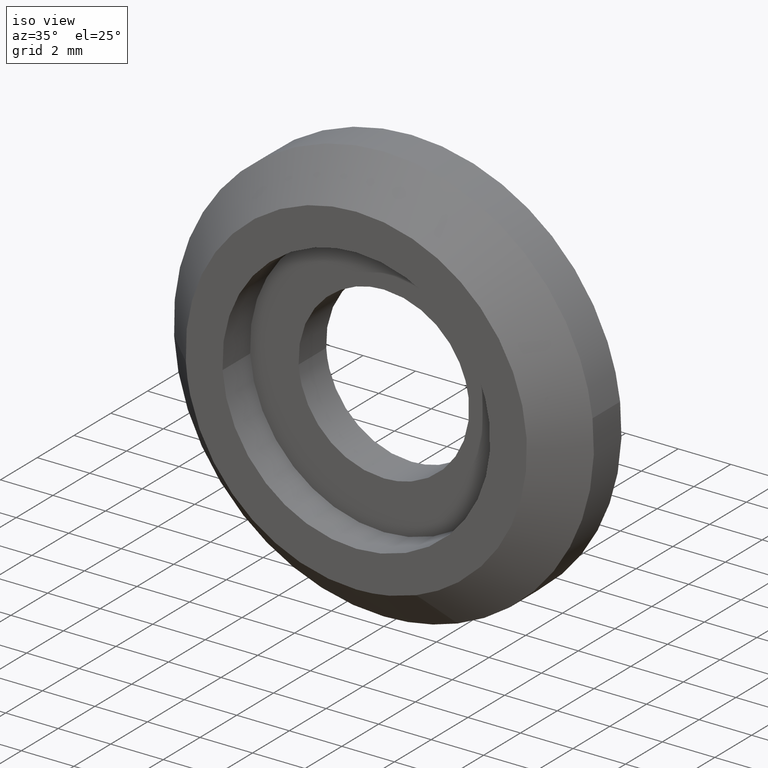
[diagram: clean part render]
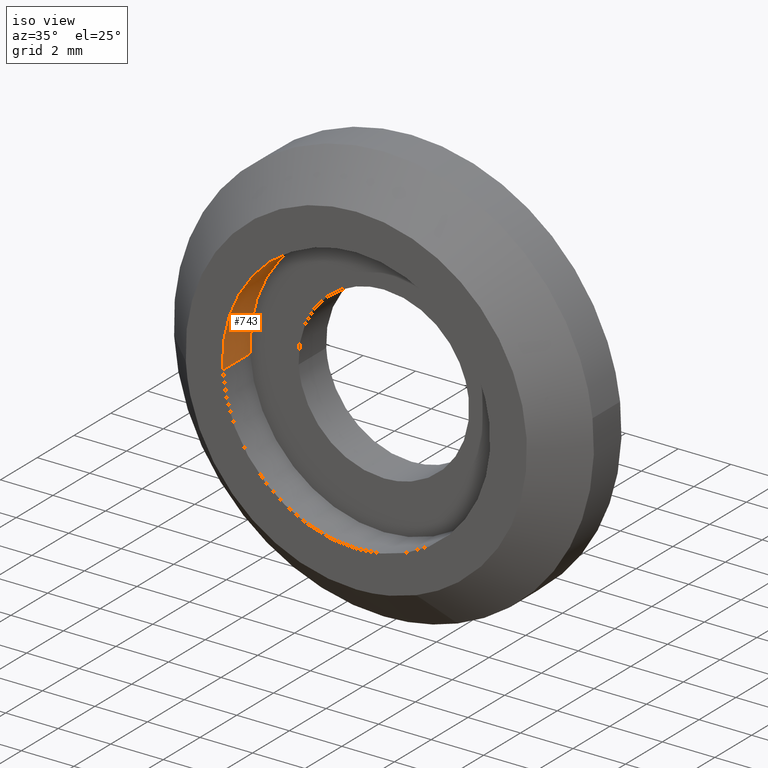
[diagram: same view with one face highlighted and labeled with its STEP entity id]
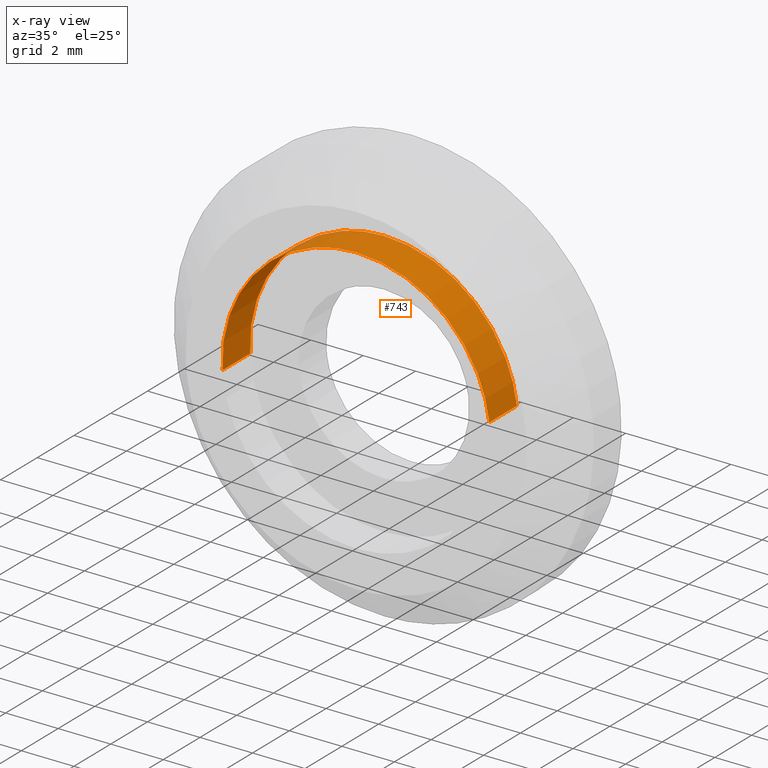
[diagram: x-ray of the same camera — body ghosted, the highlighted face saturated]
A machine part, iso view. The second image highlights one B-rep face of the part: STEP entity #743.
The next image is the same camera in x-ray: the body ghosted, the highlighted face saturated — about 0% of this face is hidden behind the body in this view.
In plain terms, the highlighted face is a freeform B-spline surface patch.
Its self-contained STEP definition (entity closure, byte-faithful):
#580=CARTESIAN_POINT('',(5.064348875071119,-2.917867E-014,0.601972151814212));
#581=VERTEX_POINT('',#580);
#599=CARTESIAN_POINT('',(-5.090487553960555,9.225259E-015,-0.311346210786117));
#600=VERTEX_POINT('',#599);
#614=CARTESIAN_POINT('',(-5.090487552947563,-1.500000000000000,-0.311346227348550));
#615=VERTEX_POINT('',#614);
#616=CARTESIAN_POINT('',(-5.090487552947563,-1.500000000000000,-0.311346227348550));
#617=CARTESIAN_POINT('',(-5.090487553960555,9.225259E-015,-0.311346210786117));
#618=QUASI_UNIFORM_CURVE('',1,(#616,#617),.UNSPECIFIED.,.F.,.U.);
#619=EDGE_CURVE('',#615,#600,#618,.T.);
#636=CARTESIAN_POINT('',(5.064348871488670,-1.500000000000000,0.601972181953224));
#637=VERTEX_POINT('',#636);
#653=CARTESIAN_POINT('',(5.064348871488670,-1.500000000000000,0.601972181953224));
#654=CARTESIAN_POINT('',(5.064348875071119,-2.917867E-014,0.601972151814212));
#655=QUASI_UNIFORM_CURVE('',1,(#653,#654),.UNSPECIFIED.,.F.,.U.);
#656=EDGE_CURVE('',#637,#581,#655,.T.);
#661=CARTESIAN_POINT('',(-5.090487471951521,-1.537500000000000,-0.311347551627771));
#662=CARTESIAN_POINT('',(-5.401835023579292,-1.537500000000000,4.779139920323751));
#663=CARTESIAN_POINT('',(-0.311347551627771,-1.537500000000000,5.090487471951521));
#664=CARTESIAN_POINT('',(4.495871803281456,-1.537500000000000,5.384509603335889));
#665=CARTESIAN_POINT('',(5.064348584454699,-1.537500000000001,0.601974596749468));
#666=CARTESIAN_POINT('',(-5.090487471951521,0.038437500000000,-0.311347551627771));
#667=CARTESIAN_POINT('',(-5.401835023579292,0.038437500000000,4.779139920323751));
#668=CARTESIAN_POINT('',(-0.311347551627771,0.038437500000000,5.090487471951521));
#669=CARTESIAN_POINT('',(4.495871803281456,0.038437500000000,5.384509603335889));
#670=CARTESIAN_POINT('',(5.064348584454699,0.038437500000000,0.601974596749468));
#678=(BOUNDED_SURFACE()B_SPLINE_SURFACE(2,1,((#661,#666),(#662,#667),(#663,#668),(#664,#669),(#665,#670)),.UNSPECIFIED.,.F.,.F.,.U.)B_SPLINE_SURFACE_WITH_KNOTS((3,2,3),(2,2),(0.0,8.449956672411139,16.561915077925828),(0.0,1.0),.UNSPECIFIED.)GEOMETRIC_REPRESENTATION_ITEM()RATIONAL_B_SPLINE_SURFACE(((1.0,1.0),(0.707106781186548,0.707106781186548),(1.0,1.0),(0.718822509939086,0.718822509939086),(0.977505800795127,0.977505800795127)))REPRESENTATION_ITEM('')SURFACE());
#679=CARTESIAN_POINT('',(0.0,0.0,5.100000000000001));
#680=VERTEX_POINT('',#679);
#681=CARTESIAN_POINT('',(0.0,0.0,5.100000000000001));
#682=CARTESIAN_POINT('',(4.529692284562907,0.0,5.100000000000001));
#683=CARTESIAN_POINT('',(5.064348875071119,-2.917867E-014,0.601972151814212));
#691=(BOUNDED_CURVE()B_SPLINE_CURVE(2,(#681,#682,#683),.UNSPECIFIED.,.F.,.U.)B_SPLINE_CURVE_WITH_KNOTS((3,3),(0.0,0.229562555106003),.UNSPECIFIED.)CURVE()GEOMETRIC_REPRESENTATION_ITEM()RATIONAL_B_SPLINE_CURVE((1.0,0.731050737263850,0.956026914108389))REPRESENTATION_ITEM(''));
#692=EDGE_CURVE('',#680,#581,#691,.T.);
#693=ORIENTED_EDGE('',*,*,#692,.T.);
#694=ORIENTED_EDGE('',*,*,#656,.F.);
#695=CARTESIAN_POINT('',(0.0,-1.500000000000000,5.100000000000001));
#696=VERTEX_POINT('',#695);
#697=CARTESIAN_POINT('',(0.0,-1.500000000000000,5.100000000000001));
#698=CARTESIAN_POINT('',(4.529692257415985,-1.500000000000000,5.100000000000000));
#699=CARTESIAN_POINT('',(5.064348871488670,-1.500000000000000,0.601972181953224));
#707=(BOUNDED_CURVE()B_SPLINE_CURVE(2,(#697,#698,#699),.UNSPECIFIED.,.F.,.U.)B_SPLINE_CURVE_WITH_KNOTS((3,3),(0.0,0.229562554100228),.UNSPECIFIED.)CURVE()GEOMETRIC_REPRESENTATION_ITEM()RATIONAL_B_SPLINE_CURVE((1.0,0.731050738442187,0.956026912137029))REPRESENTATION_ITEM(''));
#708=EDGE_CURVE('',#696,#637,#707,.T.);
#709=ORIENTED_EDGE('',*,*,#708,.F.);
#710=CARTESIAN_POINT('',(-5.090487552947563,-1.500000000000000,-0.311346227348550));
#711=CARTESIAN_POINT('',(-5.100000000000001,-1.500000000000000,-0.155818428826631));
#712=CARTESIAN_POINT('',(-5.100000000000001,-1.500000000000000,0.0));
#713=CARTESIAN_POINT('',(-5.100000000000001,-1.500000000000000,5.100000000000001));
#714=CARTESIAN_POINT('',(0.0,-1.500000000000000,5.100000000000001));
#722=(BOUNDED_CURVE()B_SPLINE_CURVE(2,(#710,#711,#712,#713,#714),.UNSPECIFIED.,.F.,.U.)B_SPLINE_CURVE_WITH_KNOTS((3,2,3),(0.739333007129641,0.750000000000000,1.0),.UNSPECIFIED.)CURVE()GEOMETRIC_REPRESENTATION_ITEM()RATIONAL_B_SPLINE_CURVE((0.976072137876048,0.987502840492562,1.0,0.707106781186548,1.0))REPRESENTATION_ITEM(''));
#723=EDGE_CURVE('',#615,#696,#722,.T.);
#724=ORIENTED_EDGE('',*,*,#723,.F.);
#725=ORIENTED_EDGE('',*,*,#619,.T.);
#726=CARTESIAN_POINT('',(-5.090487553960555,9.225259E-015,-0.311346210786117));
#727=CARTESIAN_POINT('',(-5.100000000000001,0.0,-0.155818420522195));
#728=CARTESIAN_POINT('',(-5.100000000000001,0.0,0.0));
#729=CARTESIAN_POINT('',(-5.100000000000001,0.0,5.100000000000001));
#730=CARTESIAN_POINT('',(0.0,0.0,5.100000000000001));
#738=(BOUNDED_CURVE()B_SPLINE_CURVE(2,(#726,#727,#728,#729,#730),.UNSPECIFIED.,.F.,.U.)B_SPLINE_CURVE_WITH_KNOTS((3,2,3),(0.739333007691040,0.750000000000000,1.0),.UNSPECIFIED.)CURVE()GEOMETRIC_REPRESENTATION_ITEM()RATIONAL_B_SPLINE_CURVE((0.976072139079234,0.987502841150282,1.0,0.707106781186548,1.0))REPRESENTATION_ITEM(''));
#739=EDGE_CURVE('',#600,#680,#738,.T.);
#740=ORIENTED_EDGE('',*,*,#739,.T.);
#741=EDGE_LOOP('',(#693,#694,#709,#724,#725,#740));
#742=FACE_OUTER_BOUND('',#741,.T.);
#743=ADVANCED_FACE('',(#742),#678,.F.);